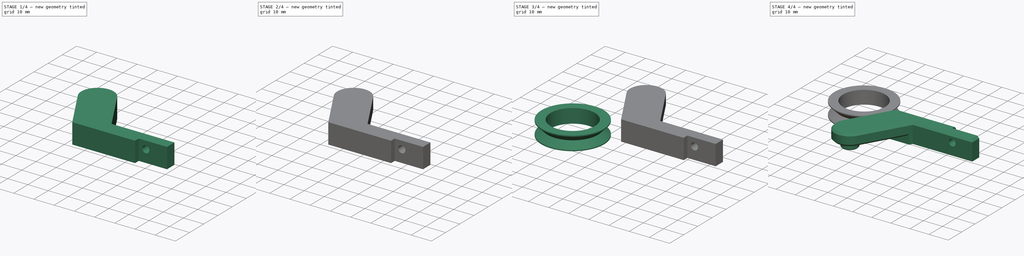
[diagram: build sequence overview — one tinted view per stage of 4, left to right]
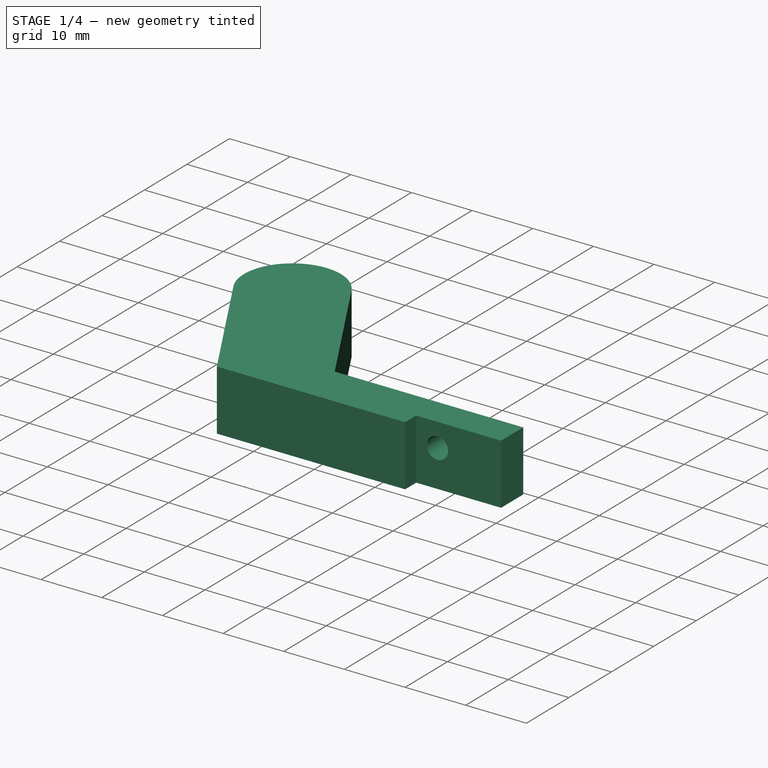
[diagram: stage 1 of 4 — iso view after this stage's code; geometry added in this stage tinted green]
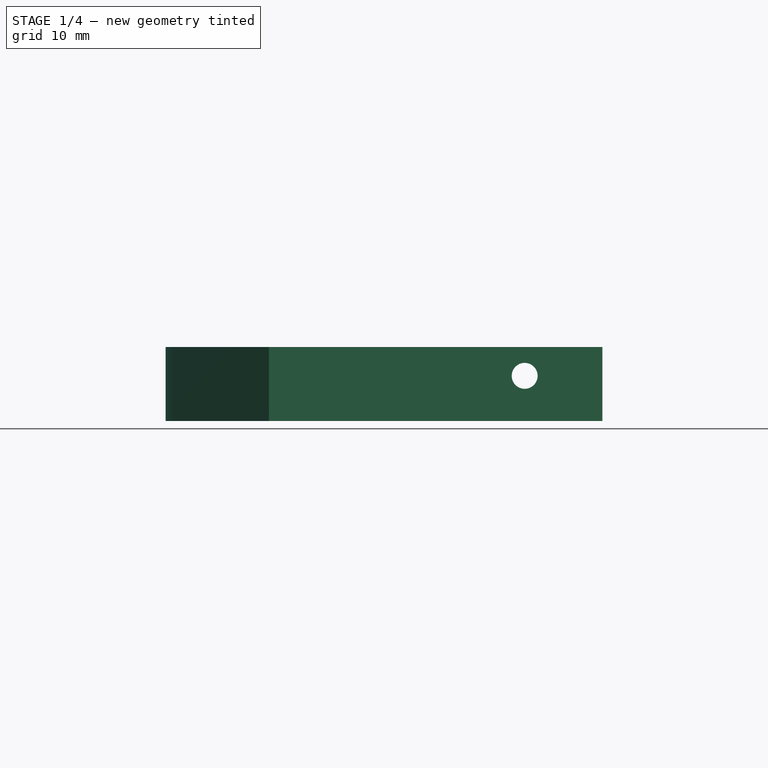
[diagram: stage 1 of 4 — front view after this stage's code; geometry added in this stage tinted green]
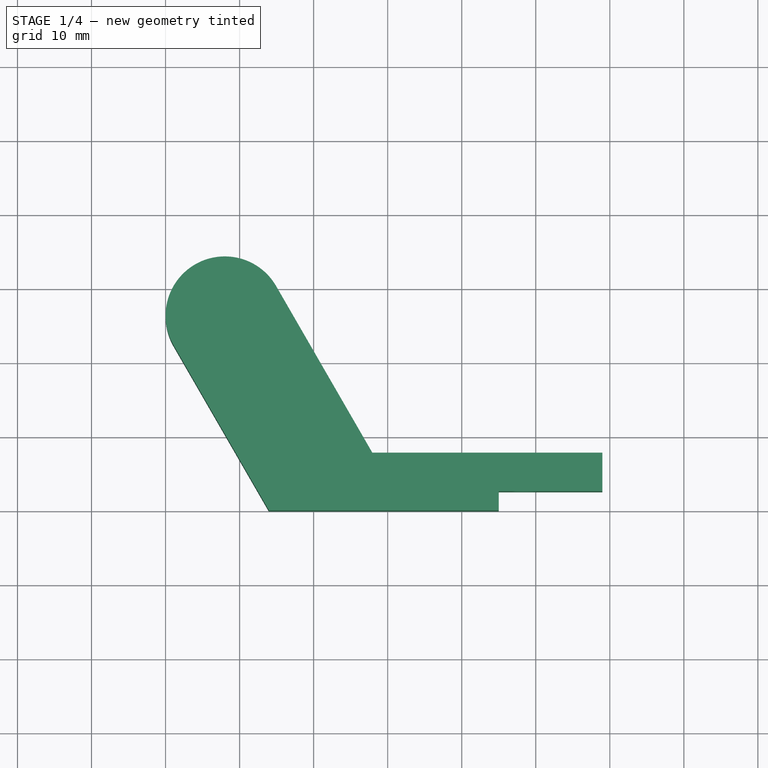
[diagram: stage 1 of 4 — top view after this stage's code; geometry added in this stage tinted green]
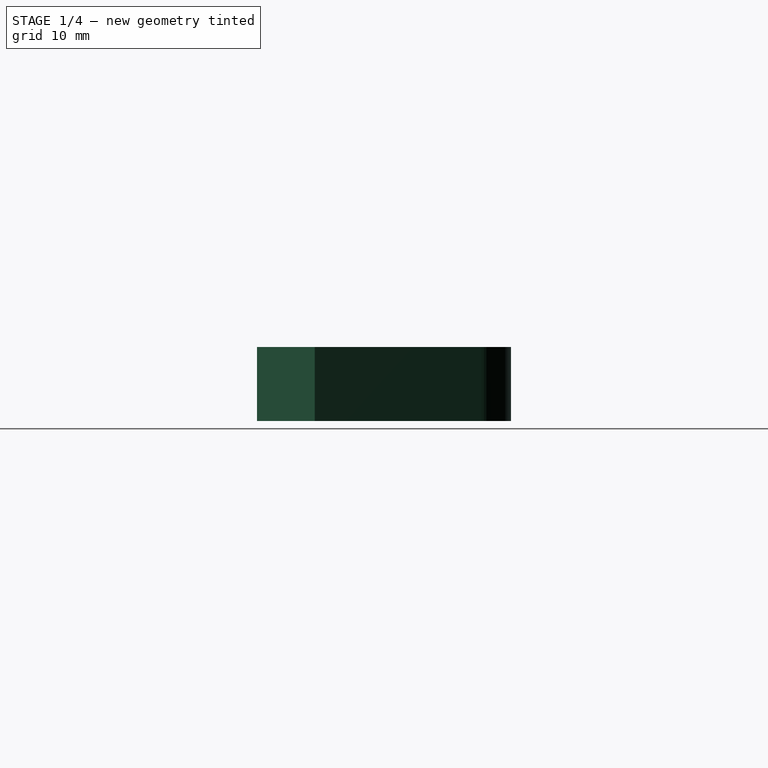
[diagram: stage 1 of 4 — right view after this stage's code; geometry added in this stage tinted green]
FCSTD DOCUMENT  (FreeCAD 0.20R27319 (Git))
Label: LowerGuide-bracket
License: Creative Commons Attribution
LicenseURL: http://creativecommons.org/licenses/by/4.0/
objects: Sketcher::SketchObject×7, PartDesign::Pad×3, PartDesign::Chamfer×3, Spreadsheet::Sheet×2, PartDesign::Body×2, PartDesign::Pocket×2, PartDesign::Revolution×1, Part::Mirroring×1
note: 28 computed .brp shape members not serialized (recipe doc carries the construction recipe); baked Part::Feature solids carry a one-line shape summary decoded from their .brp

FEATURE [PartDesign::Body] Body001  label="Grooved Pulley With Bearing"
  Group = -> [Sketch004,Revolution]
  Origin = -> Origin001
  Tip = -> Revolution
FEATURE [Spreadsheet::Sheet] Spreadsheet001
  cells = A1=Pulley Outer Diameter; B1(PulleyOuterDiameter)==B2 + 6; A2=Pulley Inner Diameter; B2(PulleyInnerDiameter)=25; A3=Pulley Clearance; B3(PulleyClearance)=1; A4=Pulley Centre Diameter; B4(PulleyCentreDiameter)=8.1; A5=Pulley Thickness; B5(PulleyThickness)=7; A7=Bearing Outer Diameter; B7(BearingOuterDiameter)=22; A8=Bearing Inner Diameter; B8(BearingInnerDiameter)=8; A9=Bearing Thickness; B9(BearingThickness)=7
FEATURE [Sketcher::SketchObject] Sketch006  label="Reference"
  FullyConstrained = false
  MapMode = 5
  Support = -> [XY_Plane]
  expr: Constraints[0] = (Spreadsheet001.PulleyInnerDiameter + 2) / 2
  expr: Constraints[1] = (Spreadsheet001.PulleyOuterDiameter + Spreadsheet001.PulleyClearance) / 2
  sketch-geometry (17):
    g0: Circle CenterX=18 CenterY=26.3 CenterZ=0 NormalX=0 NormalY=0 NormalZ=1 AngleXU=0 Radius=13.5
    g1: Circle CenterX=18 CenterY=26.3 CenterZ=0 NormalX=0 NormalY=0 NormalZ=1 AngleXU=0 Radius=16
    g2: LineSegment StartX=18.0001 StartY=12.8 StartZ=0 EndX=75.7932 EndY=12.8 EndZ=0
    g3: LineSegment StartX=40 StartY=7.8 StartZ=0 EndX=70 EndY=7.8 EndZ=0
    g4: LineSegment StartX=70 StartY=7.8 StartZ=0 EndX=70 EndY=17.8 EndZ=0
    g5: LineSegment StartX=70 StartY=17.8 StartZ=0 EndX=40 EndY=17.8 EndZ=0
    g6: ArcOfCircle CenterX=18 CenterY=26.3 CenterZ=0 NormalX=0 NormalY=0 NormalZ=1 AngleXU=0 Radius=13.5 StartAngle=3.14159 EndAngle=4.71239
    g7: LineSegment StartX=4.5 StartY=26.3 StartZ=0 EndX=4.5 EndY=45.677 EndZ=0
    g8: LineSegment StartX=55 StartY=0 StartZ=0 EndX=82.4603 EndY=0 EndZ=0
    g9: LineSegment StartX=55 StartY=2.6 StartZ=0 EndX=82.4603 EndY=2.6 EndZ=0
    g10: LineSegment StartX=40 StartY=17.8 StartZ=0 EndX=70 EndY=7.8 EndZ=0
    g11: LineSegment StartX=40 StartY=7.8 StartZ=0 EndX=70 EndY=17.8 EndZ=0
    g12: LineSegment StartX=55 StartY=2.6 StartZ=0 EndX=55 EndY=0 EndZ=0
    g13: LineSegment StartX=55 StartY=2.6 StartZ=0 EndX=82.4603 EndY=0 EndZ=0
    g14: LineSegment StartX=55 StartY=0 StartZ=0 EndX=82.4603 EndY=2.6 EndZ=0
    g15: LineSegment StartX=40 StartY=17.8 StartZ=0 EndX=40 EndY=7.8 EndZ=0
    g16: LineSegment StartX=82.4603 StartY=2.6 StartZ=0 EndX=82.4603 EndY=0 EndZ=0
  constraints (42):
    c: Radius(g0) = 13.5
    c: Radius(g1) = 16
    c: Horizontal(g2)
    c: Tangent(g0,g2)
    c: Coincident(g3,g4)
    c: Coincident(g4,g5)
    c: Horizontal(g3)
    c: Horizontal(g5)
    c: DistanceY(g4,g4) = 10
    c: DistanceX(g5,g5) = 30
    c: DistanceY(g3,g2) = 5
    c: Coincident(g6,g2)
    c: Coincident(g7,g6)
    c: Tangent(g7,g0)
    c: Vertical(g7)
    c: Vertical(g4)
    c: Coincident(g0,g1)
    c: Coincident(g0,g6)
    c: Equal(g6,g0)
    c: PointOnObject(g8,g-1)
    c: Horizontal(g8)
    c: Horizontal(g9)
    c: DistanceY(g8,g9) = 2.6
    c: Vertical(g15)
    c: Coincident(g5,g10)
    c: Coincident(g5,g15)
    c: Coincident(g4,g11)
    c: Coincident(g3,g10)
    c: Coincident(g9,g14)
    c: Coincident(g8,g13)
    c: Vertical(g16)
    c: Coincident(g8,g16)
    c: Coincident(g9,g16)
    c: DistanceY(g9,g3) = 5.2
    c: DistanceX(g0,g3) = 22
    c: Coincident(g9,g12)
    c: Coincident(g9,g13)
    c: DistanceX(g3) = 40
    c: Coincident(g8,g12)
    c: Coincident(g8,g14)
    c: Vertical(g12)
    c: DistanceX(g3,g8) = 15
FEATURE [Sketcher::SketchObject] Sketch001
  ExternalGeometry = -> [Sketch006]
  FullyConstrained = true
  MapMode = 5
  Support = -> [XY_Plane]
  sketch-geometry (8):
    g0: LineSegment StartX=23.9467 StartY=0 StartZ=0 EndX=11.0718 EndY=22.3 EndZ=0
    g1: LineSegment StartX=24.9282 StartY=30.3 StartZ=0 EndX=37.9186 EndY=7.8 EndZ=0
    g2: LineSegment StartX=37.9186 StartY=7.8 StartZ=0 EndX=69 EndY=7.8 EndZ=0
    g3: ArcOfCircle CenterX=18 CenterY=26.3 CenterZ=0 NormalX=0 NormalY=0 NormalZ=1 AngleXU=0 Radius=8 StartAngle=0.523599 EndAngle=3.66519
    g4: LineSegment StartX=69 StartY=7.8 StartZ=0 EndX=69 EndY=2.6 EndZ=0
    g5: LineSegment StartX=69 StartY=2.6 StartZ=0 EndX=55 EndY=2.6 EndZ=0
    g6: LineSegment StartX=55 StartY=2.6 StartZ=0 EndX=55 EndY=0 EndZ=0
    g7: LineSegment StartX=23.9467 StartY=0 StartZ=0 EndX=55 EndY=0 EndZ=0
  constraints (21):
    c: PointOnObject(g0,g-1)
    c: Coincident(g1,g2)
    c: Horizontal(g2)
    c: Parallel(g1,g0)
    c: Tangent(g3,g1) = 1.5708
    c: Coincident(g4,g5)
    c: Horizontal(g5)
    c: Angle(g2,g1) = 2.0944
    c: Vertical(g4)
    c: Tangent(g3,g0) = 1.5708
    c: Vertical(g6)
    c: Coincident(g7,g0)
    c: Coincident(g7,g6)
    c: Horizontal(g7)
    c: Coincident(g6,g5)
    c: Radius(g3) = 8
    c: Coincident(g2,g4)
    c: PointOnObject(g2,g-5)
    c: Coincident(g5,g-7)
    c: Coincident(g3,g-3)
    c: DistanceX(g2,g-5) = 1
FEATURE [PartDesign::Pad] Pad  label="Base"
  Direction = (0,0,1)
  Length = 10
  Length2 = 10
  Profile = -> Sketch001
  ReferenceAxis = -> Sketch001 [N_Axis]
  Type = 0
FEATURE [Sketcher::SketchObject] Sketch002
  ExternalGeometry = -> [Sketch006]
  FullyConstrained = true
  MapMode = 5
  Placement = pos=(0,0,0) rot=(1,0,0;1.5708rad)
  Support = -> [XZ_Plane]
  expr: Constraints[1] = 12.2 / 2
  expr: Constraints[2] = 3.5
  sketch-geometry (1):
    g0: Circle CenterX=58.5 CenterY=6.1 CenterZ=0 NormalX=0 NormalY=0 NormalZ=1 AngleXU=0 Radius=1.75
  constraints (3):
    c: DistanceX(g-3,g0) = 3.5
    c: DistanceY(g0) = 6.1
    c: Diameter(g0) = 3.5
FEATURE [PartDesign::Pocket] Pocket  label="Screw hole"
  BaseFeature = -> Pad
  Direction = (0,1,2e-16)
  Length = 5
  Length2 = 5
  Profile = -> Sketch002
  ReferenceAxis = -> Sketch002 [N_Axis]
  Type = 1
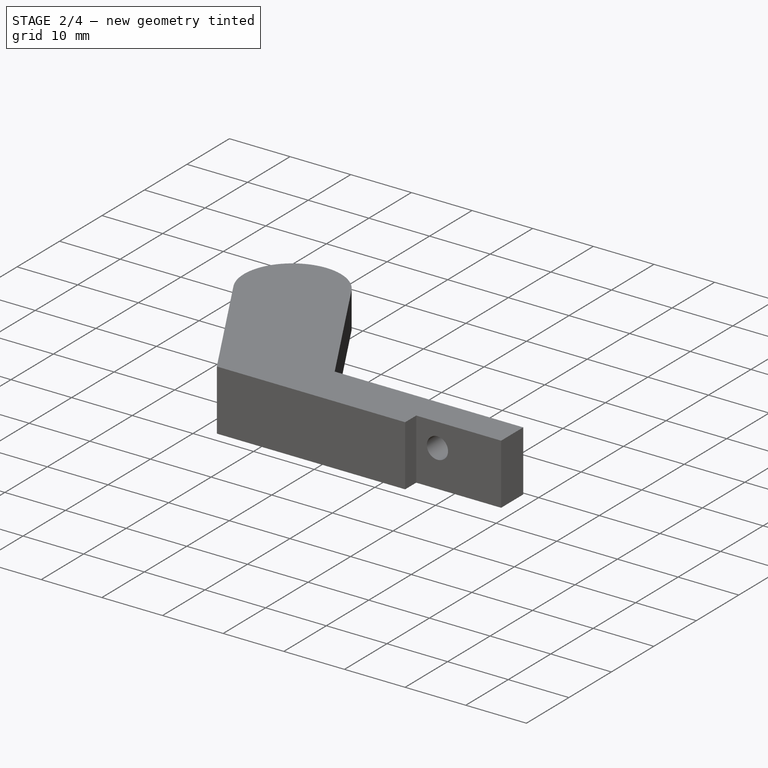
[diagram: stage 2 of 4 — iso view after this stage's code; geometry added in this stage tinted green]
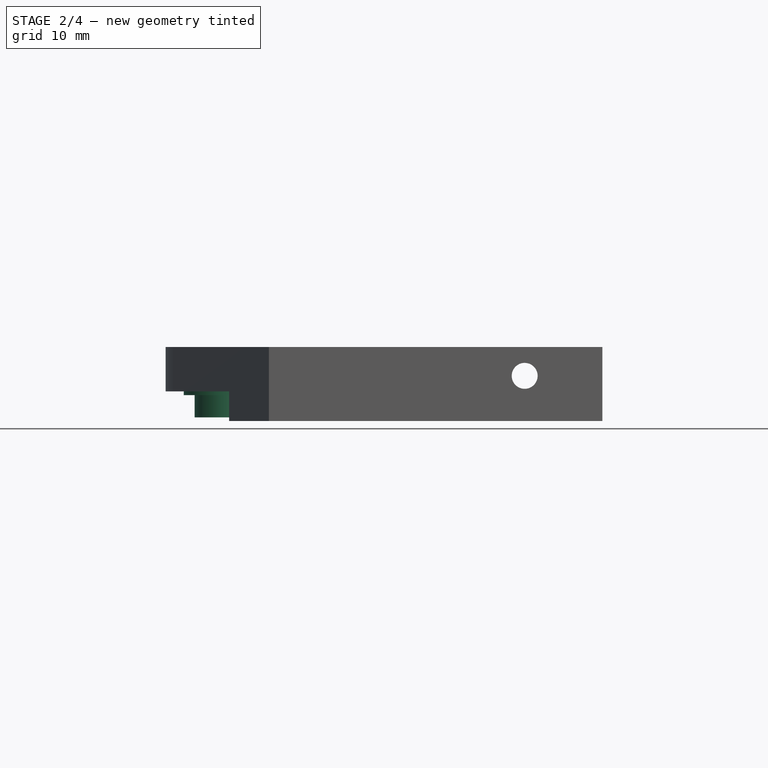
[diagram: stage 2 of 4 — front view after this stage's code; geometry added in this stage tinted green]
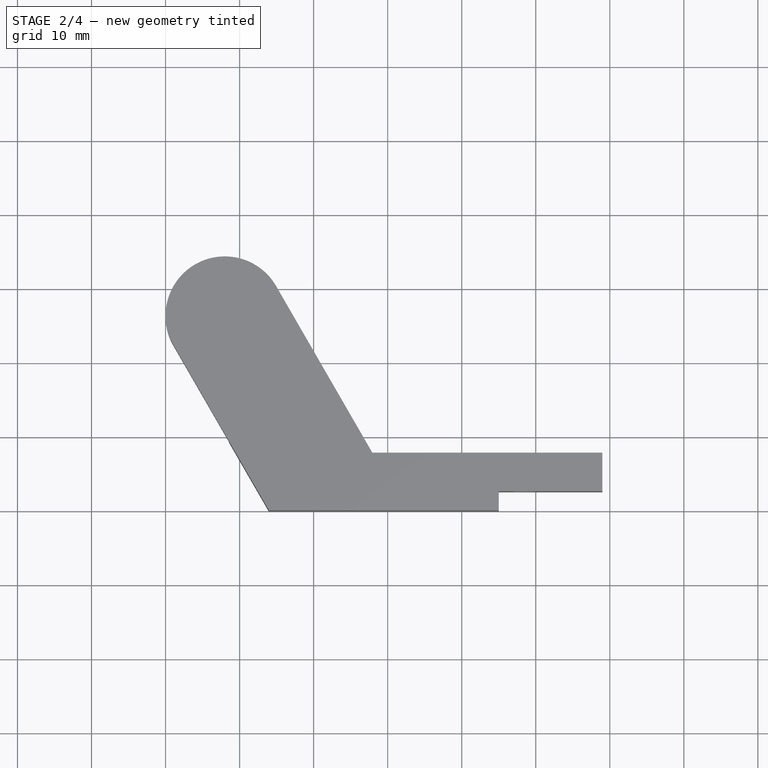
[diagram: stage 2 of 4 — top view after this stage's code; geometry added in this stage tinted green]
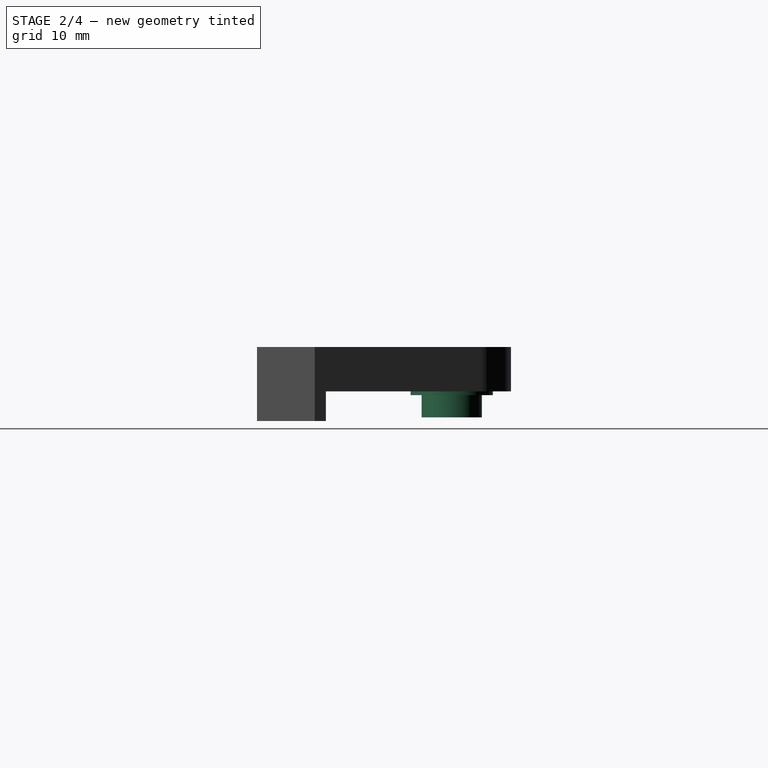
[diagram: stage 2 of 4 — right view after this stage's code; geometry added in this stage tinted green]
FEATURE [Sketcher::SketchObject] Sketch
  ExternalGeometry = -> [Sketch006]
  FullyConstrained = true
  MapMode = 5
  Support = -> [XY_Plane]
  expr: Constraints[12] = Spreadsheet.PulleyClearance
  expr: Constraints[5] = (Spreadsheet.PulleyOuterDiameter + 2) / 2
  sketch-geometry (6):
    g0: ArcOfCircle CenterX=18 CenterY=26.3 CenterZ=0 NormalX=0 NormalY=0 NormalZ=1 AngleXU=0 Radius=16.5 StartAngle=0.277552 EndAngle=3.41914
    g1: LineSegment StartX=33.8685 StartY=30.821 StartZ=0 EndX=40 EndY=9.3 EndZ=0
    g2: LineSegment StartX=40 StartY=9.3 StartZ=0 EndX=5.6868 EndY=9.3 EndZ=0
    g3: LineSegment StartX=5.6868 StartY=9.3 StartZ=0 EndX=2.13147 EndY=21.779 EndZ=0
    g4: GeomPoint X=18 Y=10.3 Z=0
    g5: LineSegment StartX=18 StartY=26.3 StartZ=0 EndX=18 EndY=9.3 EndZ=0
  constraints (15):
    c: Tangent(g0,g1) = 1.5708
    c: Coincident(g1,g2)
    c: Horizontal(g2)
    c: Coincident(g2,g3)
    c: Tangent(g3,g0) = 1.5708
    c: Radius(g0) = 16.5
    c: Coincident(g0,g-4)
    c: PointOnObject(g4,g-4)
    c: Coincident(g5,g0)
    c: PointOnObject(g5,g2)
    c: Vertical(g5)
    c: PointOnObject(g4,g5)
    c: DistanceY(g5,g4) = 1
    c: Parallel(g1,g3)
    c: PointOnObject(g1,g-5)
FEATURE [PartDesign::Pocket] Pocket001  label="PulleyRecess"
  BaseFeature = -> Pocket
  Direction = (0,0,-1)
  Length = 4
  Length2 = 5
  Profile = -> Sketch
  ReferenceAxis = -> Sketch [N_Axis]
  Reversed = true
  Type = 0
  expr: Length = (Spreadsheet.PulleyThickness + Spreadsheet.PulleyClearance) / 2
FEATURE [Sketcher::SketchObject] Sketch003
  ExternalGeometry = -> [Sketch006]
  FullyConstrained = true
  MapMode = 5
  Placement = pos=(0,0,4) rot=(1,0,0;3.14159rad)
  Support = -> [Pocket001]
  expr: Constraints[0] = Spreadsheet.PulleyCentreDiameter + 3
  sketch-geometry (1):
    g0: Circle CenterX=18 CenterY=-26.3 CenterZ=0 NormalX=0 NormalY=0 NormalZ=1 AngleXU=0 Radius=5.55
  constraints (2):
    c: Diameter(g0) = 11.1
    c: Coincident(g0,g-3)
FEATURE [PartDesign::Pad] Pad001  label="PulleyClearance"
  BaseFeature = -> Pocket001
  Direction = (0,0,-1)
  Length = 0.5
  Length2 = 10
  Profile = -> Sketch003
  ReferenceAxis = -> Sketch003 [N_Axis]
  Type = 0
  expr: Length = Spreadsheet.PulleyClearance / 2
FEATURE [Sketcher::SketchObject] Sketch005
  ExternalGeometry = -> [Sketch003]
  FullyConstrained = true
  MapMode = 5
  Placement = pos=(0,0,4) rot=(1,0,0;3.14159rad)
  Support = -> [Pocket001]
  sketch-geometry (1):
    g0: Circle CenterX=18 CenterY=-26.3 CenterZ=0 NormalX=0 NormalY=0 NormalZ=1 AngleXU=0 Radius=4.075
  constraints (2):
    c: Coincident(g0,g-3)
    c: Diameter(g0) = 8.15
FEATURE [PartDesign::Pad] Pad002  label="PulleyAxle"
  BaseFeature = -> Pad001
  Direction = (0,0,-1)
  Length = 3.5
  Length2 = 10
  Profile = -> Sketch005
  ReferenceAxis = -> Sketch005 [N_Axis]
  Type = 0
  expr: Length = Spreadsheet.PulleyThickness / 2
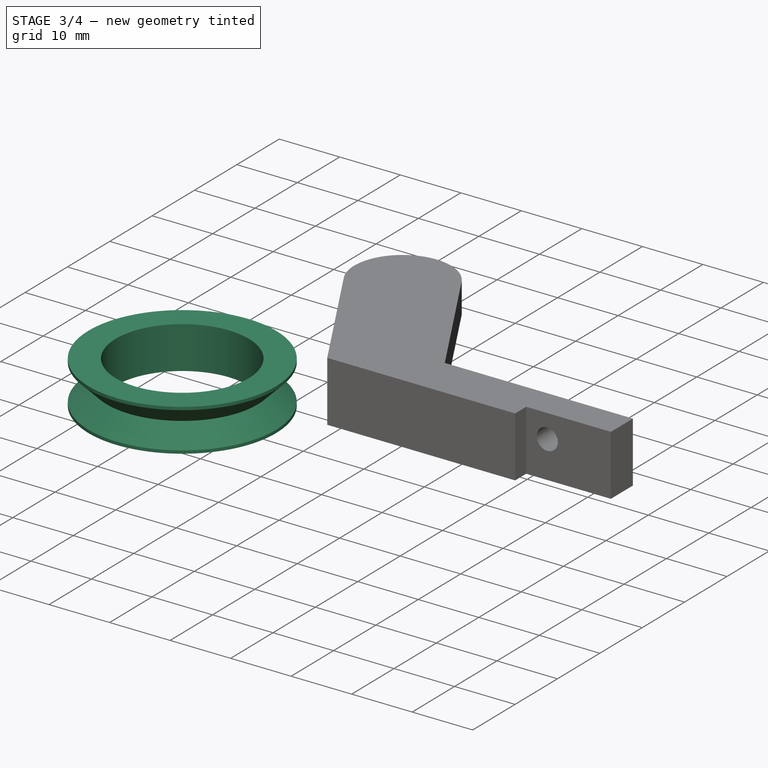
[diagram: stage 3 of 4 — iso view after this stage's code; geometry added in this stage tinted green]
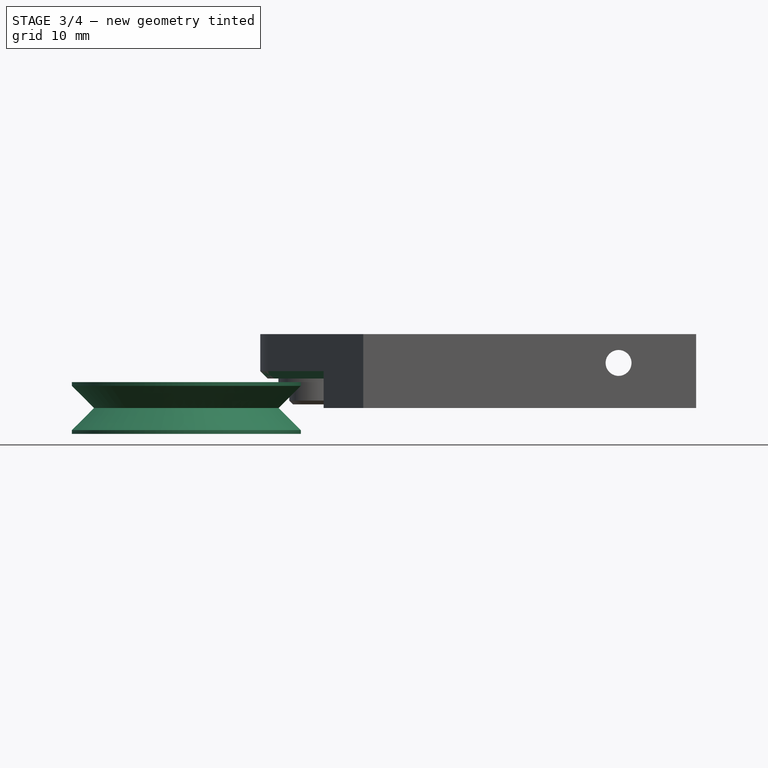
[diagram: stage 3 of 4 — front view after this stage's code; geometry added in this stage tinted green]
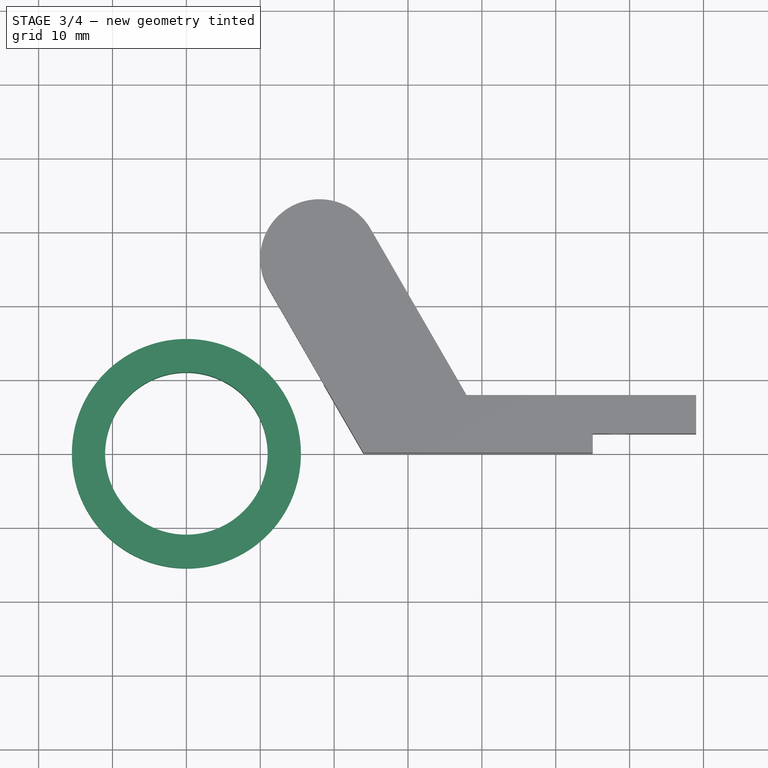
[diagram: stage 3 of 4 — top view after this stage's code; geometry added in this stage tinted green]
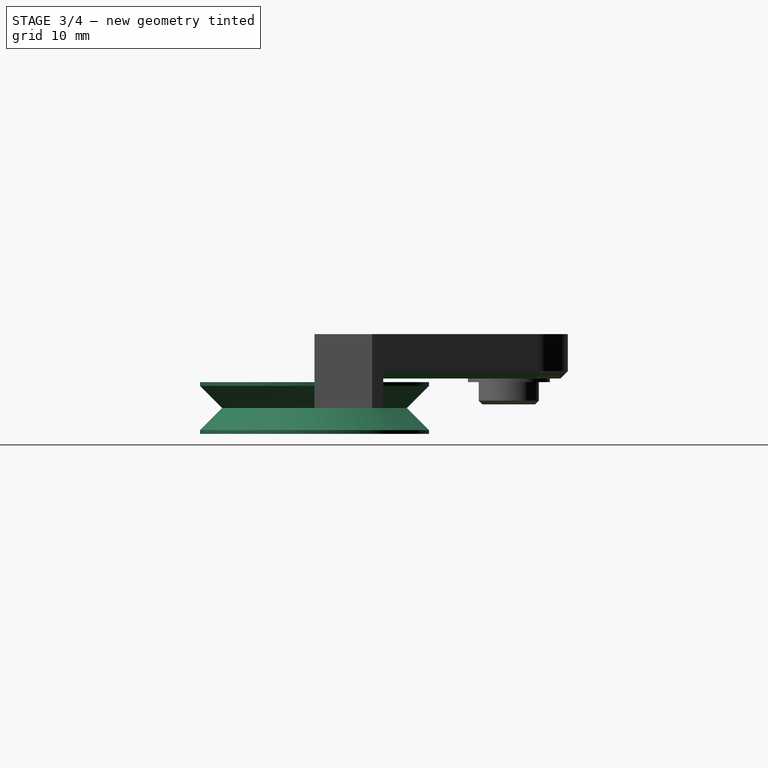
[diagram: stage 3 of 4 — right view after this stage's code; geometry added in this stage tinted green]
FEATURE [Spreadsheet::Sheet] Spreadsheet
  cells = A1=Pulley Outer Diameter; B1(PulleyOuterDiameter)==B2 + 6; A2=Pulley Inner Diameter; B2(PulleyInnerDiameter)=25; A3=Pulley Clearance; B3(PulleyClearance)=1; A4=Pulley Centre Diameter; B4(PulleyCentreDiameter)=8.1; A5=Pulley Thickness; B5(PulleyThickness)=7; A7=Bearing Outer Diameter; B7(BearingOuterDiameter)=22; A8=Bearing Inner Diameter; B8(BearingInnerDiameter)=8; A9=Bearing Thickness; B9(BearingThickness)=7
FEATURE [Sketcher::SketchObject] Sketch004
  FullyConstrained = true
  MapMode = 5
  Placement = pos=(0,0,0) rot=(1,0,0;1.5708rad)
  Support = -> [XZ_Plane001]
  expr: Constraints[13] = Spreadsheet.PulleyInnerDiameter / 2
  expr: Constraints[23] = Spreadsheet.PulleyOuterDiameter / 2
  expr: Constraints[5] = Spreadsheet.BearingThickness
  expr: Constraints[6] = Spreadsheet.BearingOuterDiameter / 2
  sketch-geometry (9):
    g0: LineSegment StartX=11 StartY=3.5 StartZ=0 EndX=15.5 EndY=3.5 EndZ=0
    g1: LineSegment StartX=11 StartY=3.5 StartZ=0 EndX=11 EndY=-3.5 EndZ=0
    g2: LineSegment StartX=11 StartY=-3.5 StartZ=0 EndX=15.5 EndY=-3.5 EndZ=0
    g3: LineSegment StartX=15.5 StartY=3.5 StartZ=0 EndX=15.5 EndY=3 EndZ=0
    g4: LineSegment StartX=15.5 StartY=-3 StartZ=0 EndX=15.5 EndY=-3.5 EndZ=0
    g5: GeomPoint X=12.5 Y=0 Z=0
    g6: LineSegment StartX=12.5 StartY=0 StartZ=0 EndX=15.5 EndY=3 EndZ=0
    g7: LineSegment StartX=12.5 StartY=0 StartZ=0 EndX=15.5 EndY=-3 EndZ=0
    g8: ArcOfCircle CenterX=15.5 CenterY=0 CenterZ=0 NormalX=0 NormalY=0 NormalZ=1 AngleXU=0 Radius=3 StartAngle=1.5708 EndAngle=4.71239
  constraints (24):
    c: Horizontal(g0)
    c: Coincident(g0,g1)
    c: Coincident(g1,g2)
    c: Horizontal(g2)
    c: Symmetric(g0,g1,g-1)
    c: DistanceY(g1,g1) = 7
    c: DistanceX(g-1,g0) = 11
    c: Vertical(g0,g2)
    c: Coincident(g3,g0)
    c: Coincident(g4,g2)
    c: Vertical(g3)
    c: Vertical(g4)
    c: PointOnObject(g5,g-1)
    c: DistanceX(g-1,g5) = 12.5
    c: Equal(g3,g4)
    c: Coincident(g6,g5)
    c: Coincident(g6,g3)
    c: Coincident(g7,g6)
    c: Coincident(g7,g4)
    c: Angle(g7,g6) = 1.5708
    c: Coincident(g8,g3)
    c: Coincident(g8,g4)
    c: PointOnObject(g6,g8)
    c: DistanceX(g-1,g0) = 15.5
FEATURE [PartDesign::Revolution] Revolution
  Angle = 360
  Axis = (0,-2e-16,1)
  Base = (0,0,0)
  Placement = pos=(0,0,0) rot=(1,0,0;1.5708rad)
  Profile = -> Sketch004
  ReferenceAxis = -> Sketch004 [V_Axis]
  Reversed = true
FEATURE [PartDesign::Chamfer] Chamfer  label="PulleyAxleChamfer"
  Angle = 45
  Base = -> Pad002 [Face17]
  BaseFeature = -> Pad002
  ChamferType = 0
  FlipDirection = false
  Size = 0.5
  Size2 = 1
  SupportTransform = false
FEATURE [PartDesign::Chamfer] Chamfer001  label="InnerFaceChamfer"
  Angle = 45
  Base = -> Chamfer [Edge10,Edge11,Edge12]
  BaseFeature = -> Chamfer
  ChamferType = 0
  FlipDirection = false
  Size = 1
  Size2 = 1
  SupportTransform = false
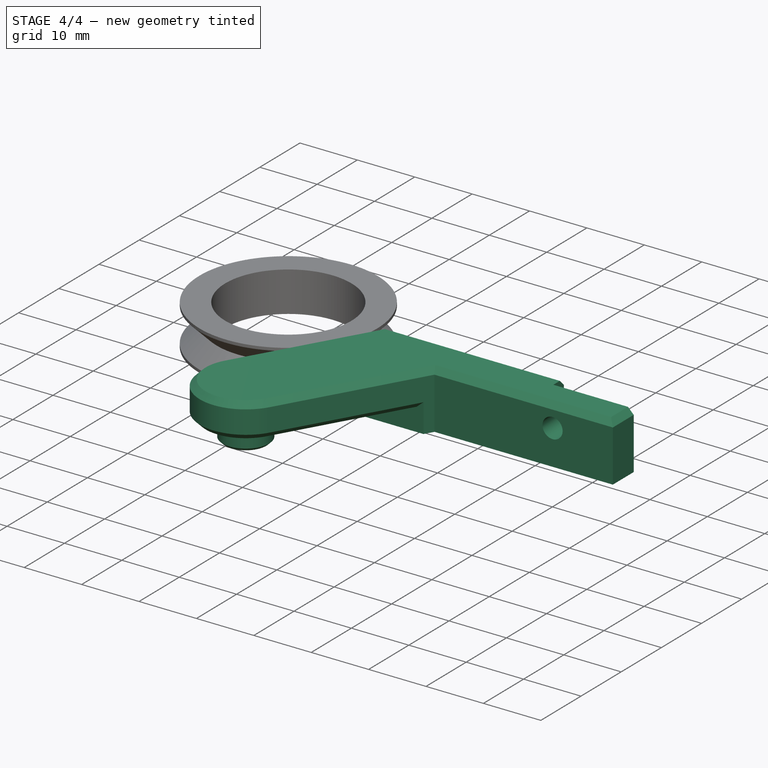
[diagram: stage 4 of 4 — iso view after this stage's code; geometry added in this stage tinted green]
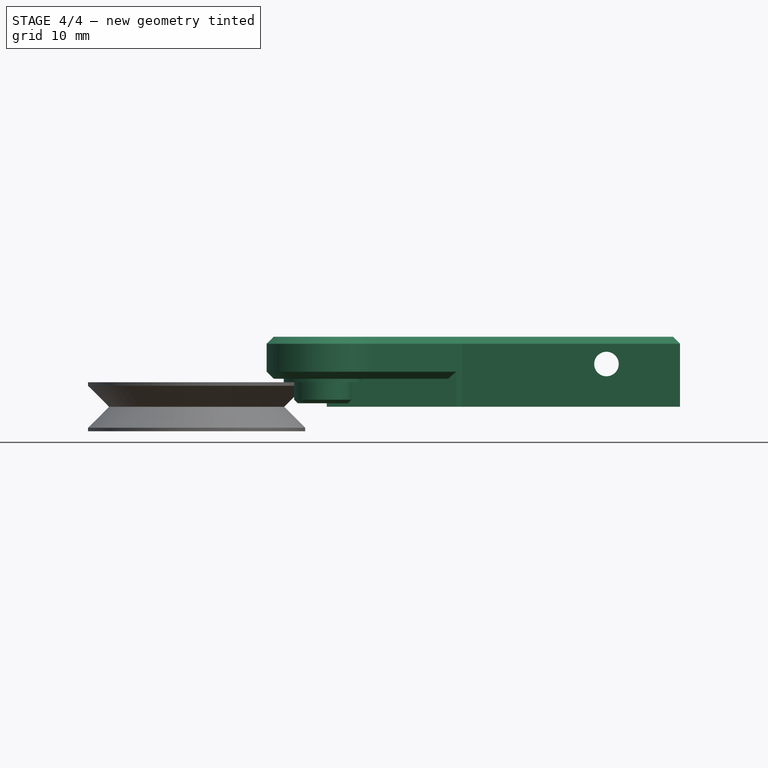
[diagram: stage 4 of 4 — front view after this stage's code; geometry added in this stage tinted green]
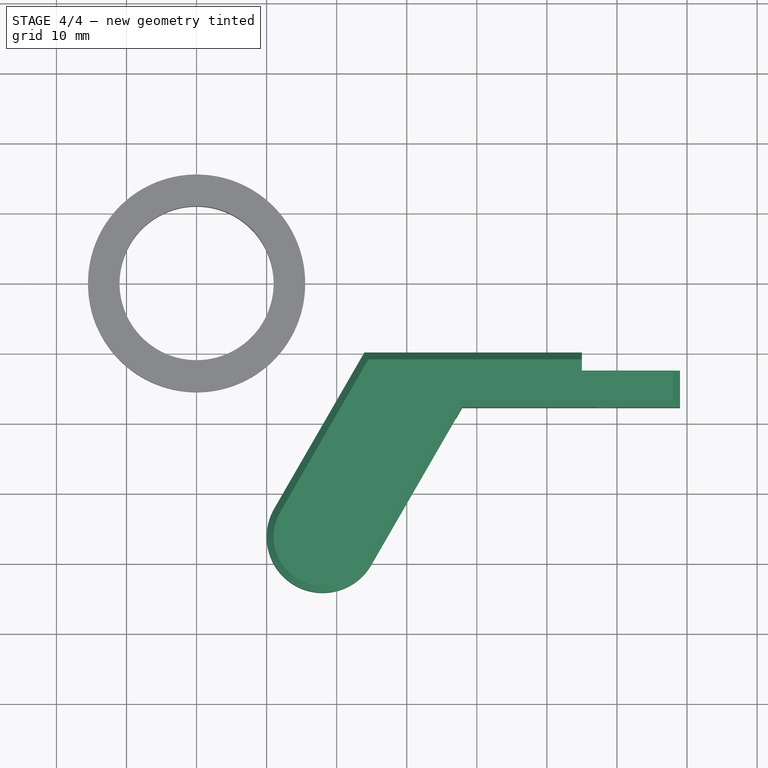
[diagram: stage 4 of 4 — top view after this stage's code; geometry added in this stage tinted green]
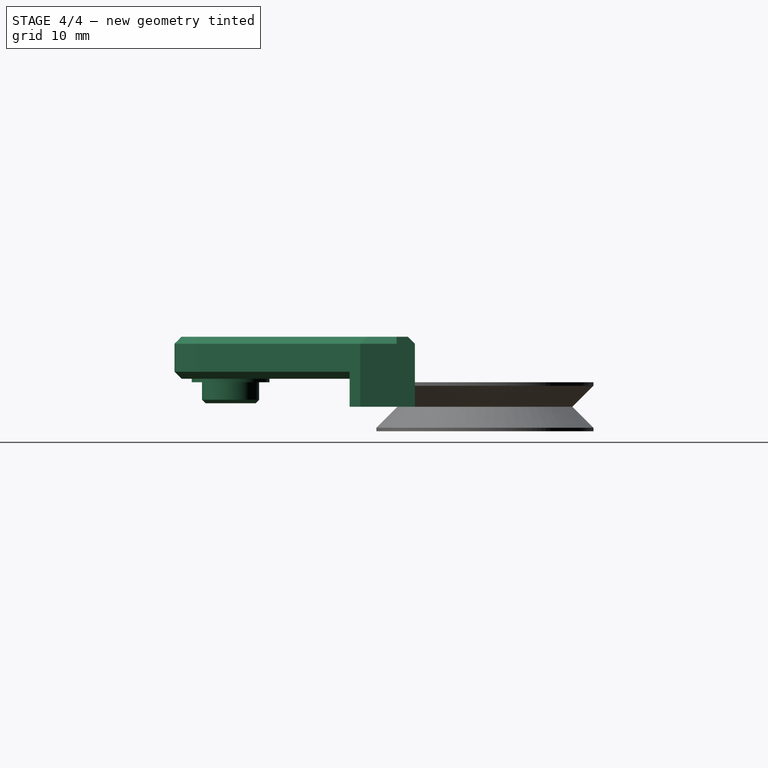
[diagram: stage 4 of 4 — right view after this stage's code; geometry added in this stage tinted green]
FEATURE [PartDesign::Chamfer] Chamfer002  label="OuterFaceChamfer"
  Angle = 45
  Base = -> Chamfer001 [Edge35,Edge21,Edge33,Edge25,Edge39,Edge36]
  BaseFeature = -> Chamfer001
  ChamferType = 0
  FlipDirection = false
  Size = 1
  Size2 = 1
  SupportTransform = false
FEATURE [PartDesign::Body] Body  label="Bracket Left"
  Group = -> [Sketch001,Pad,Sketch002,Pocket,Sketch,Pocket001,Sketch003,Pad001,Pad002,Chamfer,Chamfer001,Chamfer002,Sketch005,Sketch006]
  Origin = -> Origin
  Tip = -> Chamfer002
FEATURE [Part::Mirroring] Part__Mirroring  label="Bracket Right"
  Base = (0,0,0)
  Normal = (0,1,0)
  Placement = pos=(0,-10,0) rot=(0,0,1;0rad)
  Source = -> Body
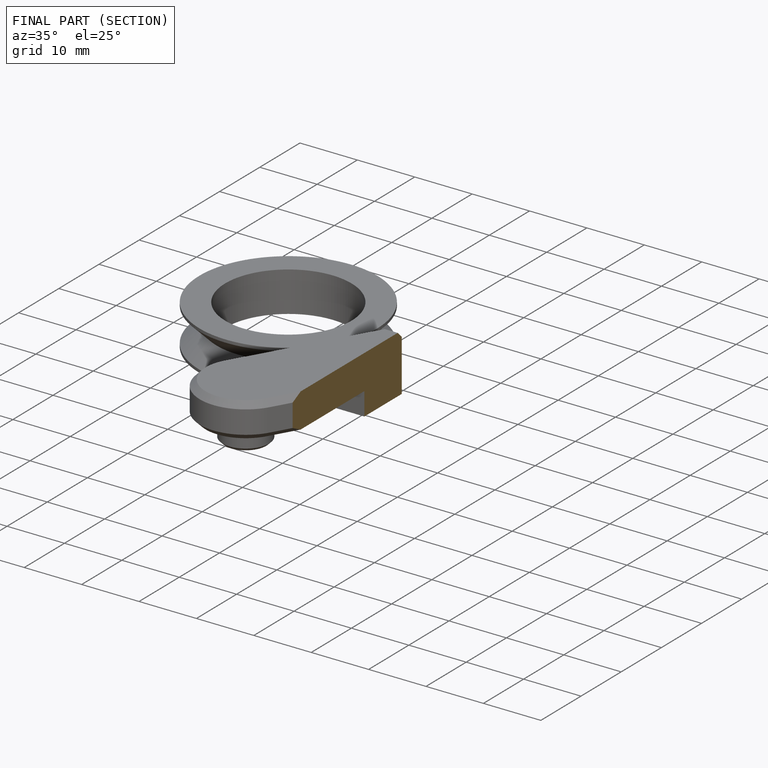
[diagram: finished part — half-section view (interior)]
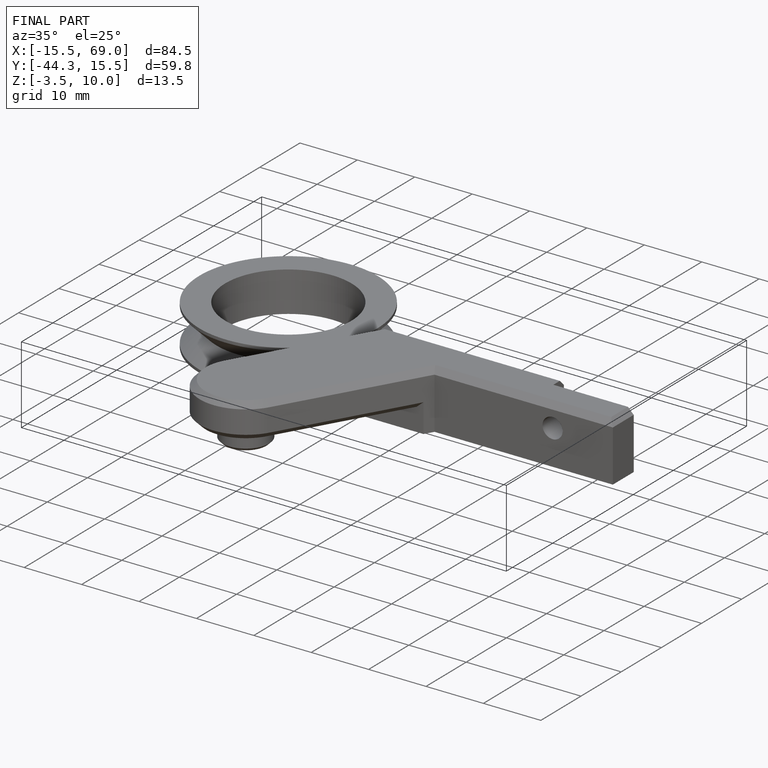
[diagram: finished part — iso view with bounding-box wireframe]
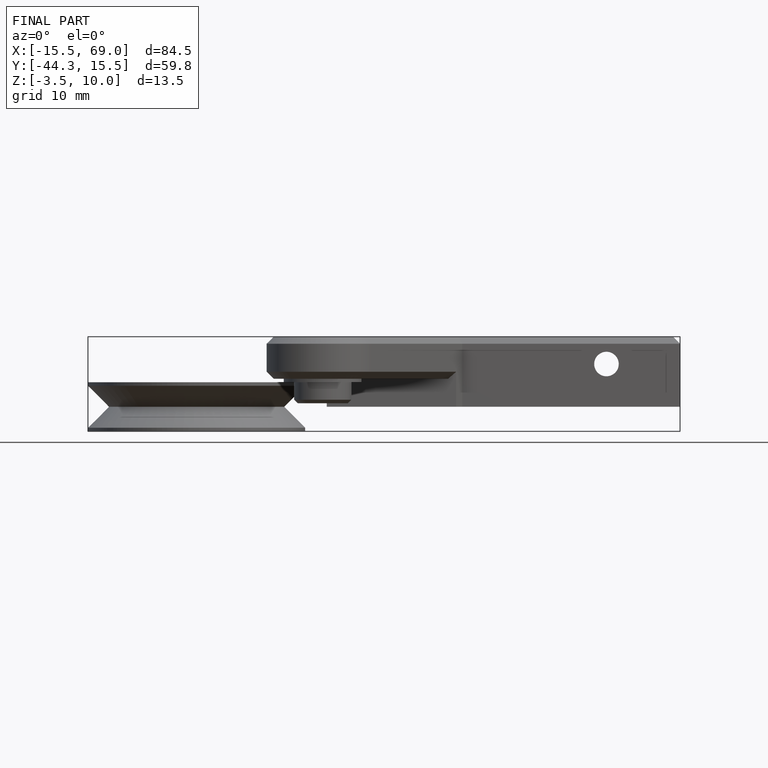
[diagram: finished part — front view with bounding-box wireframe]
